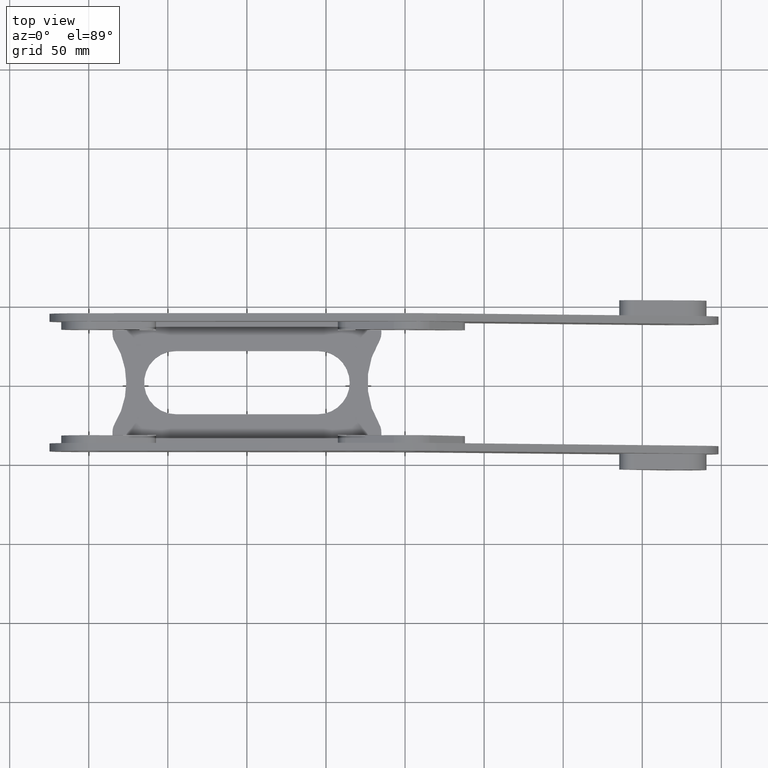
[diagram: clean part render]
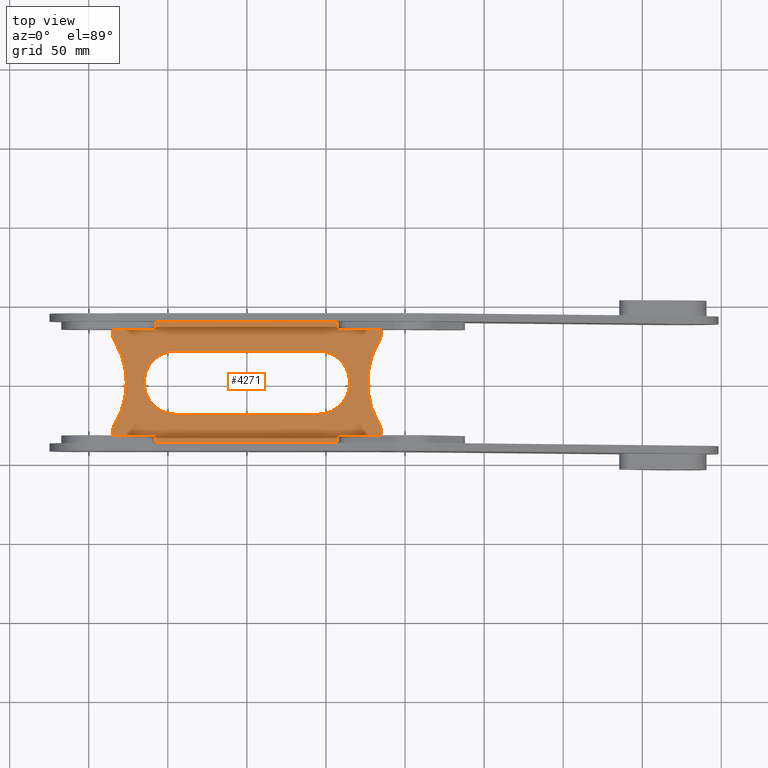
[diagram: same view with one face highlighted and labeled with its STEP entity id]
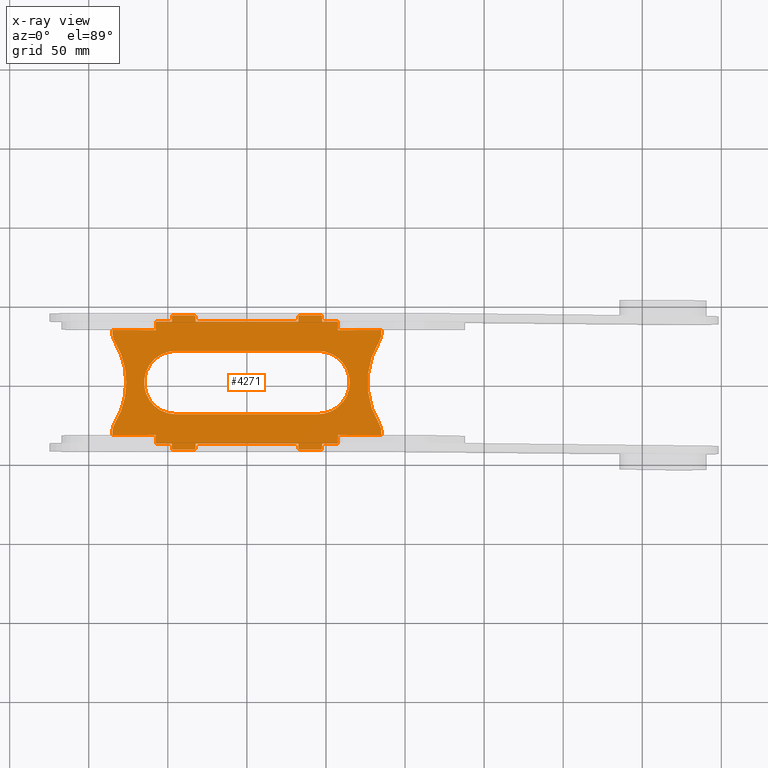
[diagram: x-ray of the same camera — body ghosted, the highlighted face saturated]
A machine part, top view. The second image highlights one B-rep face of the part: STEP entity #4271.
The next image is the same camera in x-ray: the body ghosted, the highlighted face saturated — about 0% of this face is hidden behind the body in this view.
In plain terms, the highlighted planar face has unit normal (0, 0, -1).
Its self-contained STEP definition (entity closure, byte-faithful):
#5 = VERTEX_POINT ( 'NONE', #1080 ) ;
#7 = DIRECTION ( 'NONE',  ( -0.000000000000000000, 0.000000000000000000, 1.000000000000000000 ) ) ;
#21 = DIRECTION ( 'NONE',  ( 0.000000000000000000, 0.000000000000000000, 1.000000000000000000 ) ) ;
#28 = AXIS2_PLACEMENT_3D ( 'NONE', #2318, #21, #3673 ) ;
#34 = AXIS2_PLACEMENT_3D ( 'NONE', #1774, #2490, #4162 ) ;
#42 = ORIENTED_EDGE ( 'NONE', *, *, #3307, .T. ) ;
#44 = CARTESIAN_POINT ( 'NONE',  ( -84.99999999999998579, 33.20000000000000284, 2.500000000000000000 ) ) ;
#59 = CARTESIAN_POINT ( 'NONE',  ( -33.49999999999999289, 41.49999999999999289, 2.500000000000000000 ) ) ;
#63 = VERTEX_POINT ( 'NONE', #2039 ) ;
#72 = ORIENTED_EDGE ( 'NONE', *, *, #2526, .T. ) ;
#74 = VERTEX_POINT ( 'NONE', #1721 ) ;
#93 = ORIENTED_EDGE ( 'NONE', *, *, #1607, .F. ) ;
#99 = ORIENTED_EDGE ( 'NONE', *, *, #796, .T. ) ;
#104 = EDGE_CURVE ( 'NONE', #3347, #315, #335, .T. ) ;
#124 = LINE ( 'NONE', #1479, #1944 ) ;
#185 = ORIENTED_EDGE ( 'NONE', *, *, #1568, .T. ) ;
#194 = CARTESIAN_POINT ( 'NONE',  ( -57.49999999999999289, -38.49999999999999289, 2.500000000000000000 ) ) ;
#196 = EDGE_CURVE ( 'NONE', #3283, #1138, #2503, .T. ) ;
#235 = AXIS2_PLACEMENT_3D ( 'NONE', #3378, #2379, #283 ) ;
#242 = CIRCLE ( 'NONE', #1230, 50.00000000000000000 ) ;
#244 = CARTESIAN_POINT ( 'NONE',  ( -76.28873938497034146, 0.000000000000000000, 2.500000000000000000 ) ) ;
#245 = VECTOR ( 'NONE', #1791, 1000.000000000000000 ) ;
#251 = DIRECTION ( 'NONE',  ( -1.000000000000000000, -1.318389841742374023E-14, 0.000000000000000000 ) ) ;
#258 = DIRECTION ( 'NONE',  ( 0.000000000000000000, 1.000000000000000000, 0.000000000000000000 ) ) ;
#277 = CARTESIAN_POINT ( 'NONE',  ( -85.00000000000000000, 38.50000000000000000, 2.500000000000000000 ) ) ;
#283 = DIRECTION ( 'NONE',  ( 1.000000000000000000, 0.000000000000000000, 0.000000000000000000 ) ) ;
#291 = VERTEX_POINT ( 'NONE', #918 ) ;
#300 = CIRCLE ( 'NONE', #664, 9.999999999999994671 ) ;
#301 = ORIENTED_EDGE ( 'NONE', *, *, #2062, .T. ) ;
#315 = VERTEX_POINT ( 'NONE', #1941 ) ;
#320 = VERTEX_POINT ( 'NONE', #2613 ) ;
#323 = CARTESIAN_POINT ( 'NONE',  ( 33.50000000000000711, 42.49999999999998579, 2.500000000000000000 ) ) ;
#335 = B_SPLINE_CURVE_WITH_KNOTS ( 'NONE', 1,
 ( #4155, #323 ),
 .UNSPECIFIED., .F., .F.,
 ( 2, 2 ),
 ( 0.6500000000000000222, 0.9749999999999999778 ),
 .UNSPECIFIED. ) ;
#345 = CARTESIAN_POINT ( 'NONE',  ( 85.00000000000001421, -38.49999999999997158, 2.500000000000000000 ) ) ;
#348 = CARTESIAN_POINT ( 'NONE',  ( 46.50000000000000711, -41.49999999999999289, 2.500000000000000000 ) ) ;
#349 = EDGE_CURVE ( 'NONE', #3208, #74, #951, .T. ) ;
#356 = EDGE_LOOP ( 'NONE', ( #1810, #4167, #1522, #1500, #1612, #2654, #2391, #2453, #1990, #1336, #2255, #3493, #3073, #514, #1694, #2760, #4176, #3484, #1915, #2859, #3039, #4136, #1472, #584, #2500, #93, #2528, #2817, #42, #4347, #301, #1587, #185, #2149, #3531, #2217, #3520, #1712, #72, #858, #1344, #99, #1020, #717, #3153 ) ) ;
#371 = VECTOR ( 'NONE', #551, 1000.000000000000000 ) ;
#383 = AXIS2_PLACEMENT_3D ( 'NONE', #3391, #703, #3993 ) ;
#412 = CARTESIAN_POINT ( 'NONE',  ( 46.50000000000000711, -42.49999999999998579, 2.500000000000000000 ) ) ;
#414 = AXIS2_PLACEMENT_3D ( 'NONE', #3450, #4118, #2387 ) ;
#423 = DIRECTION ( 'NONE',  ( 0.000000000000000000, -1.000000000000000000, 0.000000000000000000 ) ) ;
#431 = CARTESIAN_POINT ( 'NONE',  ( -85.00000000000000000, 38.50000000000000000, 2.500000000000000000 ) ) ;
#442 = VERTEX_POINT ( 'NONE', #881 ) ;
#461 = DIRECTION ( 'NONE',  ( 0.000000000000000000, 0.000000000000000000, 1.000000000000000000 ) ) ;
#462 = DIRECTION ( 'NONE',  ( -1.000000000000000000, -1.632680918566406547E-16, 0.000000000000000000 ) ) ;
#479 = CARTESIAN_POINT ( 'NONE',  ( 83.54812323082839498, 25.94686360168220318, 2.500000000000000000 ) ) ;
#483 = VECTOR ( 'NONE', #552, 1000.000000000000000 ) ;
#494 = AXIS2_PLACEMENT_3D ( 'NONE', #348, #4066, #3693 ) ;
#514 = ORIENTED_EDGE ( 'NONE', *, *, #2878, .T. ) ;
#537 = VERTEX_POINT ( 'NONE', #1545 ) ;
#551 = DIRECTION ( 'NONE',  ( -0.000000000000000000, 1.000000000000000000, -0.000000000000000000 ) ) ;
#552 = DIRECTION ( 'NONE',  ( 1.000000000000000000, 1.927470528863120281E-16, 0.000000000000000000 ) ) ;
#584 = ORIENTED_EDGE ( 'NONE', *, *, #3107, .T. ) ;
#592 = VECTOR ( 'NONE', #1657, 1000.000000000000000 ) ;
#600 = DIRECTION ( 'NONE',  ( 0.000000000000000000, -1.000000000000000000, 0.000000000000000000 ) ) ;
#613 = CARTESIAN_POINT ( 'NONE',  ( 57.49999999999999289, -38.50000000000002842, 2.500000000000000000 ) ) ;
#620 = EDGE_CURVE ( 'NONE', #1436, #2948, #1212, .T. ) ;
#634 = CARTESIAN_POINT ( 'NONE',  ( -46.49999999999999289, 41.49999999999999289, 2.500000000000000000 ) ) ;
#639 = EDGE_CURVE ( 'NONE', #2639, #3973, #3625, .T. ) ;
#641 = CARTESIAN_POINT ( 'NONE',  ( -83.54812323082839498, 25.94686360168220318, 2.500000000000000000 ) ) ;
#664 = AXIS2_PLACEMENT_3D ( 'NONE', #1674, #7, #4396 ) ;
#667 = DIRECTION ( 'NONE',  ( -1.000000000000000000, 0.000000000000000000, 0.000000000000000000 ) ) ;
#695 = VERTEX_POINT ( 'NONE', #1323 ) ;
#703 = DIRECTION ( 'NONE',  ( -0.000000000000000000, 0.000000000000000000, 1.000000000000000000 ) ) ;
#707 = CARTESIAN_POINT ( 'NONE',  ( -126.2887393849703415, 0.000000000000000000, 2.500000000000000000 ) ) ;
#710 = DIRECTION ( 'NONE',  ( 0.000000000000000000, 0.000000000000000000, -1.000000000000000000 ) ) ;
#717 = ORIENTED_EDGE ( 'NONE', *, *, #620, .T. ) ;
#733 = CARTESIAN_POINT ( 'NONE',  ( -33.49999999999999289, -41.49999999999999289, 2.500000000000000000 ) ) ;
#763 = LINE ( 'NONE', #2099, #798 ) ;
#769 = EDGE_CURVE ( 'NONE', #2660, #1736, #4314, .T. ) ;
#779 = CARTESIAN_POINT ( 'NONE',  ( 33.50000000000000711, -42.49999999999998579, 2.500000000000000000 ) ) ;
#796 = EDGE_CURVE ( 'NONE', #3755, #818, #3689, .T. ) ;
#797 = CARTESIAN_POINT ( 'NONE',  ( -32.49999999999998579, 38.50000000000000711, 2.500000000000000000 ) ) ;
#798 = VECTOR ( 'NONE', #423, 1000.000000000000000 ) ;
#812 = CARTESIAN_POINT ( 'NONE',  ( 85.00000000000000000, 38.50000000000002842, 2.500000000000000000 ) ) ;
#813 = CIRCLE ( 'NONE', #34, 9.999999999999994671 ) ;
#814 = VERTEX_POINT ( 'NONE', #641 ) ;
#818 = VERTEX_POINT ( 'NONE', #925 ) ;
#844 = VECTOR ( 'NONE', #2450, 1000.000000000000000 ) ;
#845 = CARTESIAN_POINT ( 'NONE',  ( 64.99999999999995737, 3.081487911019577365E-30, 2.500000000000000000 ) ) ;
#848 = AXIS2_PLACEMENT_3D ( 'NONE', #3741, #1064, #4091 ) ;
#858 = ORIENTED_EDGE ( 'NONE', *, *, #639, .F. ) ;
#881 = CARTESIAN_POINT ( 'NONE',  ( -46.49999999999999289, 42.49999999999998579, 2.500000000000000000 ) ) ;
#887 = LINE ( 'NONE', #1243, #371 ) ;
#918 = CARTESIAN_POINT ( 'NONE',  ( -32.49999999999999289, -41.49999999999999289, 2.500000000000000000 ) ) ;
#925 = CARTESIAN_POINT ( 'NONE',  ( 47.50000000000000711, -38.49999999999999289, 2.500000000000000000 ) ) ;
#930 = LINE ( 'NONE', #1534, #1372 ) ;
#942 = DIRECTION ( 'NONE',  ( -1.000000000000000000, 0.000000000000000000, 0.000000000000000000 ) ) ;
#951 = CIRCLE ( 'NONE', #4301, 9.999999999999994671 ) ;
#973 = LINE ( 'NONE', #3355, #4195 ) ;
#997 = PLANE ( 'NONE',  #2422 ) ;
#998 = EDGE_CURVE ( 'NONE', #818, #1436, #1224, .T. ) ;
#1020 = ORIENTED_EDGE ( 'NONE', *, *, #998, .T. ) ;
#1056 = CARTESIAN_POINT ( 'NONE',  ( 46.50000000000000711, -42.49999999999998579, 2.500000000000000000 ) ) ;
#1057 = CARTESIAN_POINT ( 'NONE',  ( 44.99999999999998579, -19.99999999999998224, 2.500000000000000000 ) ) ;
#1061 = DIRECTION ( 'NONE',  ( 1.000000000000000000, 0.000000000000000000, 0.000000000000000000 ) ) ;
#1064 = DIRECTION ( 'NONE',  ( 0.000000000000000000, 0.000000000000000000, 1.000000000000000000 ) ) ;
#1080 = CARTESIAN_POINT ( 'NONE',  ( -57.50000000000000711, -33.20000000000000284, 2.500000000000000000 ) ) ;
#1127 = DIRECTION ( 'NONE',  ( 0.000000000000000000, -1.000000000000000000, 0.000000000000000000 ) ) ;
#1138 = VERTEX_POINT ( 'NONE', #1984 ) ;
#1176 = CARTESIAN_POINT ( 'NONE',  ( 85.00000000000000000, 33.19999999999997442, 2.500000000000000000 ) ) ;
#1190 = DIRECTION ( 'NONE',  ( -1.000000000000000000, 0.000000000000000000, 0.000000000000000000 ) ) ;
#1198 = VECTOR ( 'NONE', #3941, 1000.000000000000000 ) ;
#1212 = LINE ( 'NONE', #613, #2880 ) ;
#1224 = LINE ( 'NONE', #1604, #2714 ) ;
#1227 = VECTOR ( 'NONE', #1061, 1000.000000000000000 ) ;
#1230 = AXIS2_PLACEMENT_3D ( 'NONE', #2886, #4244, #1190 ) ;
#1243 = CARTESIAN_POINT ( 'NONE',  ( -47.49999999999999289, -42.49999999999999289, 2.500000000000000000 ) ) ;
#1244 = DIRECTION ( 'NONE',  ( -1.000000000000000000, 0.000000000000000000, 0.000000000000000000 ) ) ;
#1253 = EDGE_CURVE ( 'NONE', #3994, #2416, #300, .T. ) ;
#1272 = VERTEX_POINT ( 'NONE', #3052 ) ;
#1284 = CARTESIAN_POINT ( 'NONE',  ( -44.99999999999997158, -19.99999999999998224, 2.500000000000000000 ) ) ;
#1299 = AXIS2_PLACEMENT_3D ( 'NONE', #2356, #3716, #667 ) ;
#1318 = VERTEX_POINT ( 'NONE', #2520 ) ;
#1323 = CARTESIAN_POINT ( 'NONE',  ( 32.50000000000000711, -41.49999999999999289, 2.500000000000000000 ) ) ;
#1324 = LINE ( 'NONE', #345, #3004 ) ;
#1336 = ORIENTED_EDGE ( 'NONE', *, *, #3822, .F. ) ;
#1344 = ORIENTED_EDGE ( 'NONE', *, *, #4299, .T. ) ;
#1346 = DIRECTION ( 'NONE',  ( 1.000000000000000000, 0.000000000000000000, 0.000000000000000000 ) ) ;
#1369 = CARTESIAN_POINT ( 'NONE',  ( 0.000000000000000000, 0.000000000000000000, 2.500000000000000000 ) ) ;
#1372 = VECTOR ( 'NONE', #2894, 1000.000000000000000 ) ;
#1375 = CARTESIAN_POINT ( 'NONE',  ( 47.50000000000000711, -41.49999999999999289, 2.500000000000000000 ) ) ;
#1379 = VERTEX_POINT ( 'NONE', #3835 ) ;
#1389 = DIRECTION ( 'NONE',  ( 1.000000000000000000, 0.000000000000000000, 0.000000000000000000 ) ) ;
#1416 = EDGE_CURVE ( 'NONE', #2256, #1756, #763, .T. ) ;
#1419 = DIRECTION ( 'NONE',  ( 0.000000000000000000, -1.000000000000000000, 0.000000000000000000 ) ) ;
#1425 = CARTESIAN_POINT ( 'NONE',  ( 44.99999999999997158, 3.081487911019577365E-30, 2.500000000000000000 ) ) ;
#1432 = EDGE_CURVE ( 'NONE', #2213, #4198, #3359, .T. ) ;
#1435 = LINE ( 'NONE', #3485, #1519 ) ;
#1436 = VERTEX_POINT ( 'NONE', #4189 ) ;
#1468 = VERTEX_POINT ( 'NONE', #244 ) ;
#1472 = ORIENTED_EDGE ( 'NONE', *, *, #3091, .T. ) ;
#1479 = CARTESIAN_POINT ( 'NONE',  ( 85.00000000000000000, 38.50000000000002842, 2.500000000000000000 ) ) ;
#1500 = ORIENTED_EDGE ( 'NONE', *, *, #1253, .T. ) ;
#1508 = LINE ( 'NONE', #3535, #4047 ) ;
#1516 = CIRCLE ( 'NONE', #1299, 1.000000000000000888 ) ;
#1519 = VECTOR ( 'NONE', #4200, 1000.000000000000000 ) ;
#1522 = ORIENTED_EDGE ( 'NONE', *, *, #3038, .T. ) ;
#1528 = EDGE_CURVE ( 'NONE', #2836, #3925, #887, .T. ) ;
#1534 = CARTESIAN_POINT ( 'NONE',  ( -57.50000000000000711, 38.50000000000000000, 2.500000000000000000 ) ) ;
#1545 = CARTESIAN_POINT ( 'NONE',  ( -32.49999999999999289, -38.49999999999999289, 2.500000000000000000 ) ) ;
#1568 = EDGE_CURVE ( 'NONE', #2836, #1736, #4214, .T. ) ;
#1587 = ORIENTED_EDGE ( 'NONE', *, *, #1528, .F. ) ;
#1604 = CARTESIAN_POINT ( 'NONE',  ( 85.00000000000001421, -38.49999999999997158, 2.500000000000000000 ) ) ;
#1607 = EDGE_CURVE ( 'NONE', #3208, #1468, #4355, .T. ) ;
#1611 = VERTEX_POINT ( 'NONE', #2319 ) ;
#1612 = ORIENTED_EDGE ( 'NONE', *, *, #1819, .T. ) ;
#1657 = DIRECTION ( 'NONE',  ( -1.802310104910968394E-16, 1.000000000000000000, -0.000000000000000000 ) ) ;
#1674 = CARTESIAN_POINT ( 'NONE',  ( 75.00000000000001421, 31.13623632201864666, 2.500000000000000000 ) ) ;
#1694 = ORIENTED_EDGE ( 'NONE', *, *, #3683, .F. ) ;
#1712 = ORIENTED_EDGE ( 'NONE', *, *, #2326, .F. ) ;
#1721 = CARTESIAN_POINT ( 'NONE',  ( -84.99999999999997158, -31.13623632201861113, 2.500000000000000000 ) ) ;
#1729 = VECTOR ( 'NONE', #2684, 1000.000000000000000 ) ;
#1732 = DIRECTION ( 'NONE',  ( 0.000000000000000000, 0.000000000000000000, 1.000000000000000000 ) ) ;
#1736 = VERTEX_POINT ( 'NONE', #3467 ) ;
#1747 = VERTEX_POINT ( 'NONE', #2756 ) ;
#1755 = EDGE_CURVE ( 'NONE', #2660, #291, #2933, .T. ) ;
#1756 = VERTEX_POINT ( 'NONE', #3810 ) ;
#1774 = CARTESIAN_POINT ( 'NONE',  ( 75.00000000000001421, -31.13623632201866798, 2.500000000000000000 ) ) ;
#1791 = DIRECTION ( 'NONE',  ( -1.000000000000000000, -1.632680918566406547E-16, 0.000000000000000000 ) ) ;
#1794 = VECTOR ( 'NONE', #2949, 1000.000000000000000 ) ;
#1800 = CARTESIAN_POINT ( 'NONE',  ( 85.00000000000000000, 38.50000000000002842, 2.500000000000000000 ) ) ;
#1801 = LINE ( 'NONE', #2514, #844 ) ;
#1803 = EDGE_CURVE ( 'NONE', #1898, #320, #3134, .T. ) ;
#1810 = ORIENTED_EDGE ( 'NONE', *, *, #3067, .T. ) ;
#1812 = VERTEX_POINT ( 'NONE', #797 ) ;
#1819 = EDGE_CURVE ( 'NONE', #2416, #1921, #2849, .T. ) ;
#1846 = ORIENTED_EDGE ( 'NONE', *, *, #2473, .F. ) ;
#1861 = LINE ( 'NONE', #3244, #4218 ) ;
#1898 = VERTEX_POINT ( 'NONE', #1926 ) ;
#1905 = EDGE_CURVE ( 'NONE', #5, #4083, #1861, .T. ) ;
#1907 = CIRCLE ( 'NONE', #2976, 1.000000000000000888 ) ;
#1915 = ORIENTED_EDGE ( 'NONE', *, *, #2765, .T. ) ;
#1921 = VERTEX_POINT ( 'NONE', #1176 ) ;
#1926 = CARTESIAN_POINT ( 'NONE',  ( 32.50000000000000711, 41.49999999999999289, 2.500000000000000000 ) ) ;
#1936 = VECTOR ( 'NONE', #3093, 1000.000000000000000 ) ;
#1940 = VECTOR ( 'NONE', #4252, 1000.000000000000000 ) ;
#1941 = CARTESIAN_POINT ( 'NONE',  ( 33.50000000000000711, 42.49999999999998579, 2.500000000000000000 ) ) ;
#1944 = VECTOR ( 'NONE', #2846, 1000.000000000000000 ) ;
#1955 = CARTESIAN_POINT ( 'NONE',  ( -85.00000000000000000, 33.20000000000000284, 2.500000000000000000 ) ) ;
#1964 = CARTESIAN_POINT ( 'NONE',  ( -84.99999999999998579, -33.20000000000000284, 2.500000000000000000 ) ) ;
#1969 = CARTESIAN_POINT ( 'NONE',  ( 33.50000000000000711, -42.49999999999998579, 2.500000000000000000 ) ) ;
#1984 = CARTESIAN_POINT ( 'NONE',  ( -57.50000000000000711, 38.50000000000000000, 2.500000000000000000 ) ) ;
#1990 = ORIENTED_EDGE ( 'NONE', *, *, #1416, .F. ) ;
#1994 = ORIENTED_EDGE ( 'NONE', *, *, #4228, .F. ) ;
#2013 = LINE ( 'NONE', #4086, #592 ) ;
#2020 = DIRECTION ( 'NONE',  ( -1.000000000000000000, 0.000000000000000000, -0.000000000000000000 ) ) ;
#2039 = CARTESIAN_POINT ( 'NONE',  ( 57.49999999999999289, 38.50000000000002132, 2.500000000000000000 ) ) ;
#2061 = EDGE_CURVE ( 'NONE', #3060, #4192, #2725, .T. ) ;
#2062 = EDGE_CURVE ( 'NONE', #4083, #3925, #1324, .T. ) ;
#2064 = DIRECTION ( 'NONE',  ( 0.000000000000000000, 0.000000000000000000, 1.000000000000000000 ) ) ;
#2096 = B_SPLINE_CURVE_WITH_KNOTS ( 'NONE', 1,
 ( #2329, #3014 ),
 .UNSPECIFIED., .F., .F.,
 ( 2, 2 ),
 ( 0.6500000000000000222, 0.9749999999999999778 ),
 .UNSPECIFIED. ) ;
#2099 = CARTESIAN_POINT ( 'NONE',  ( 47.50000000000000711, 42.49999999999999289, 2.500000000000000000 ) ) ;
#2102 = CARTESIAN_POINT ( 'NONE',  ( -33.49999999999999289, -42.49999999999998579, 2.500000000000000000 ) ) ;
#2111 = DIRECTION ( 'NONE',  ( -1.000000000000000000, 0.000000000000000000, 0.000000000000000000 ) ) ;
#2118 = DIRECTION ( 'NONE',  ( 1.000000000000000000, 0.000000000000000000, 0.000000000000000000 ) ) ;
#2149 = ORIENTED_EDGE ( 'NONE', *, *, #769, .F. ) ;
#2162 = CIRCLE ( 'NONE', #28, 1.000000000000000888 ) ;
#2164 = EDGE_CURVE ( 'NONE', #1898, #315, #1516, .T. ) ;
#2176 = EDGE_CURVE ( 'NONE', #2372, #4079, #3086, .T. ) ;
#2178 = LINE ( 'NONE', #431, #3157 ) ;
#2189 = EDGE_CURVE ( 'NONE', #1468, #814, #2801, .T. ) ;
#2202 = CIRCLE ( 'NONE', #848, 19.99999999999997513 ) ;
#2213 = VERTEX_POINT ( 'NONE', #845 ) ;
#2217 = ORIENTED_EDGE ( 'NONE', *, *, #3700, .T. ) ;
#2230 = CARTESIAN_POINT ( 'NONE',  ( 47.50000000000000711, 41.49999999999999289, 2.500000000000000000 ) ) ;
#2231 = DIRECTION ( 'NONE',  ( 0.000000000000000000, 0.000000000000000000, 1.000000000000000000 ) ) ;
#2241 = EDGE_CURVE ( 'NONE', #4079, #1138, #930, .T. ) ;
#2242 = CARTESIAN_POINT ( 'NONE',  ( 85.00000000000001421, -38.49999999999997158, 2.500000000000000000 ) ) ;
#2255 = ORIENTED_EDGE ( 'NONE', *, *, #104, .T. ) ;
#2256 = VERTEX_POINT ( 'NONE', #2230 ) ;
#2284 = CARTESIAN_POINT ( 'NONE',  ( 57.49999999999999289, -33.19999999999997442, 2.500000000000000000 ) ) ;
#2294 = AXIS2_PLACEMENT_3D ( 'NONE', #3917, #2231, #3585 ) ;
#2306 = CIRCLE ( 'NONE', #383, 9.999999999999994671 ) ;
#2318 = CARTESIAN_POINT ( 'NONE',  ( 33.50000000000000711, -41.49999999999999289, 2.500000000000000000 ) ) ;
#2319 = CARTESIAN_POINT ( 'NONE',  ( -85.00000000000000000, 31.13623632201864311, 2.500000000000000000 ) ) ;
#2326 = EDGE_CURVE ( 'NONE', #695, #1379, #3562, .T. ) ;
#2329 = CARTESIAN_POINT ( 'NONE',  ( -33.49999999999999289, 42.49999999999998579, 2.500000000000000000 ) ) ;
#2335 = CARTESIAN_POINT ( 'NONE',  ( -44.99999999999997158, -19.99999999999998224, 2.500000000000000000 ) ) ;
#2340 = CARTESIAN_POINT ( 'NONE',  ( -32.49999999999999289, 41.49999999999999289, 2.500000000000000000 ) ) ;
#2356 = CARTESIAN_POINT ( 'NONE',  ( 33.50000000000000711, 41.49999999999999289, 2.500000000000000000 ) ) ;
#2372 = VERTEX_POINT ( 'NONE', #1955 ) ;
#2374 = DIRECTION ( 'NONE',  ( -0.000000000000000000, 0.000000000000000000, -1.000000000000000000 ) ) ;
#2379 = DIRECTION ( 'NONE',  ( 0.000000000000000000, 0.000000000000000000, 1.000000000000000000 ) ) ;
#2387 = DIRECTION ( 'NONE',  ( -1.000000000000000000, 0.000000000000000000, 0.000000000000000000 ) ) ;
#2391 = ORIENTED_EDGE ( 'NONE', *, *, #3926, .F. ) ;
#2416 = VERTEX_POINT ( 'NONE', #3336 ) ;
#2422 = AXIS2_PLACEMENT_3D ( 'NONE', #1369, #710, #2020 ) ;
#2450 = DIRECTION ( 'NONE',  ( 0.000000000000000000, -1.000000000000000000, 0.000000000000000000 ) ) ;
#2453 = ORIENTED_EDGE ( 'NONE', *, *, #3975, .T. ) ;
#2465 = CARTESIAN_POINT ( 'NONE',  ( -47.49999999999999289, -41.49999999999999289, 2.500000000000000000 ) ) ;
#2473 = EDGE_CURVE ( 'NONE', #4198, #3060, #2690, .T. ) ;
#2490 = DIRECTION ( 'NONE',  ( -0.000000000000000000, 0.000000000000000000, 1.000000000000000000 ) ) ;
#2492 = CARTESIAN_POINT ( 'NONE',  ( -47.49999999999998579, -38.49999999999999289, 2.500000000000000000 ) ) ;
#2498 = DIRECTION ( 'NONE',  ( 0.000000000000000000, 0.000000000000000000, 1.000000000000000000 ) ) ;
#2500 = ORIENTED_EDGE ( 'NONE', *, *, #2189, .F. ) ;
#2503 = LINE ( 'NONE', #812, #245 ) ;
#2508 = AXIS2_PLACEMENT_3D ( 'NONE', #733, #461, #2111 ) ;
#2514 = CARTESIAN_POINT ( 'NONE',  ( 57.49999999999999289, 38.50000000000002842, 2.500000000000000000 ) ) ;
#2520 = CARTESIAN_POINT ( 'NONE',  ( -33.49999999999999289, 42.49999999999998579, 2.500000000000000000 ) ) ;
#2526 = EDGE_CURVE ( 'NONE', #695, #3973, #2162, .T. ) ;
#2528 = ORIENTED_EDGE ( 'NONE', *, *, #349, .T. ) ;
#2564 = VERTEX_POINT ( 'NONE', #4180 ) ;
#2583 = CARTESIAN_POINT ( 'NONE',  ( -32.49999999999999289, -42.49999999999999289, 2.500000000000000000 ) ) ;
#2613 = CARTESIAN_POINT ( 'NONE',  ( 32.50000000000000711, 38.49999999999999289, 2.500000000000000000 ) ) ;
#2639 = VERTEX_POINT ( 'NONE', #412 ) ;
#2646 = EDGE_CURVE ( 'NONE', #3406, #1272, #813, .T. ) ;
#2652 = VECTOR ( 'NONE', #1419, 1000.000000000000000 ) ;
#2654 = ORIENTED_EDGE ( 'NONE', *, *, #2755, .F. ) ;
#2660 = VERTEX_POINT ( 'NONE', #3110 ) ;
#2663 = CARTESIAN_POINT ( 'NONE',  ( -83.54812323082838077, -25.94686360168217831, 2.500000000000000000 ) ) ;
#2667 = CARTESIAN_POINT ( 'NONE',  ( -46.49999999999999289, -42.49999999999998579, 2.500000000000000000 ) ) ;
#2669 = CARTESIAN_POINT ( 'NONE',  ( 44.99999999999995737, 20.00000000000000000, 2.500000000000000000 ) ) ;
#2671 = CARTESIAN_POINT ( 'NONE',  ( -44.99999999999997158, 19.99999999999998224, 2.500000000000000000 ) ) ;
#2684 = DIRECTION ( 'NONE',  ( 3.604620209821936788E-16, -1.000000000000000000, 0.000000000000000000 ) ) ;
#2688 = FACE_BOUND ( 'NONE', #3478, .T. ) ;
#2690 = LINE ( 'NONE', #2671, #3508 ) ;
#2699 = VERTEX_POINT ( 'NONE', #3100 ) ;
#2714 = VECTOR ( 'NONE', #3660, 1000.000000000000000 ) ;
#2725 = CIRCLE ( 'NONE', #235, 19.99999999999998224 ) ;
#2755 = EDGE_CURVE ( 'NONE', #2564, #1921, #1435, .T. ) ;
#2756 = CARTESIAN_POINT ( 'NONE',  ( 85.00000000000001421, -33.19999999999997442, 2.500000000000000000 ) ) ;
#2760 = ORIENTED_EDGE ( 'NONE', *, *, #3553, .F. ) ;
#2765 = EDGE_CURVE ( 'NONE', #2860, #3283, #2778, .T. ) ;
#2778 = LINE ( 'NONE', #4135, #4007 ) ;
#2801 = CIRCLE ( 'NONE', #3221, 50.00000000000000000 ) ;
#2817 = ORIENTED_EDGE ( 'NONE', *, *, #2841, .T. ) ;
#2836 = VERTEX_POINT ( 'NONE', #2465 ) ;
#2841 = EDGE_CURVE ( 'NONE', #74, #2699, #2178, .T. ) ;
#2846 = DIRECTION ( 'NONE',  ( -1.000000000000000000, -1.632680918566406547E-16, 0.000000000000000000 ) ) ;
#2849 = LINE ( 'NONE', #1800, #1936 ) ;
#2859 = ORIENTED_EDGE ( 'NONE', *, *, #196, .T. ) ;
#2860 = VERTEX_POINT ( 'NONE', #3155 ) ;
#2878 = EDGE_CURVE ( 'NONE', #320, #1812, #124, .T. ) ;
#2880 = VECTOR ( 'NONE', #258, 1000.000000000000000 ) ;
#2886 = CARTESIAN_POINT ( 'NONE',  ( 126.2887393849703415, 0.000000000000000000, 2.500000000000000000 ) ) ;
#2894 = DIRECTION ( 'NONE',  ( -0.000000000000000000, 1.000000000000000000, -0.000000000000000000 ) ) ;
#2933 = CIRCLE ( 'NONE', #2508, 1.000000000000000888 ) ;
#2947 = DIRECTION ( 'NONE',  ( 1.000000000000000000, 1.632680918566406793E-16, -0.000000000000000000 ) ) ;
#2948 = VERTEX_POINT ( 'NONE', #2284 ) ;
#2949 = DIRECTION ( 'NONE',  ( -0.000000000000000000, 1.000000000000000000, -0.000000000000000000 ) ) ;
#2950 = DIRECTION ( 'NONE',  ( 0.000000000000000000, -1.000000000000000000, 0.000000000000000000 ) ) ;
#2956 = LINE ( 'NONE', #1284, #483 ) ;
#2972 = VECTOR ( 'NONE', #600, 1000.000000000000000 ) ;
#2976 = AXIS2_PLACEMENT_3D ( 'NONE', #59, #4366, #1244 ) ;
#2982 = EDGE_CURVE ( 'NONE', #537, #1379, #4269, .T. ) ;
#2987 = DIRECTION ( 'NONE',  ( -0.000000000000000000, 0.000000000000000000, 1.000000000000000000 ) ) ;
#3004 = VECTOR ( 'NONE', #3061, 1000.000000000000000 ) ;
#3014 = CARTESIAN_POINT ( 'NONE',  ( -46.49999999999999289, 42.49999999999998579, 2.500000000000000000 ) ) ;
#3038 = EDGE_CURVE ( 'NONE', #1272, #3994, #242, .T. ) ;
#3039 = ORIENTED_EDGE ( 'NONE', *, *, #2241, .F. ) ;
#3052 = CARTESIAN_POINT ( 'NONE',  ( 83.54812323082840919, -25.94686360168222095, 2.500000000000000000 ) ) ;
#3060 = VERTEX_POINT ( 'NONE', #4379 ) ;
#3061 = DIRECTION ( 'NONE',  ( 1.000000000000000000, 1.632680918566406793E-16, -0.000000000000000000 ) ) ;
#3067 = EDGE_CURVE ( 'NONE', #1747, #3406, #2013, .T. ) ;
#3073 = ORIENTED_EDGE ( 'NONE', *, *, #1803, .T. ) ;
#3086 = LINE ( 'NONE', #44, #1227 ) ;
#3091 = EDGE_CURVE ( 'NONE', #2372, #1611, #3757, .T. ) ;
#3093 = DIRECTION ( 'NONE',  ( -1.802310104910968394E-16, 1.000000000000000000, -0.000000000000000000 ) ) ;
#3100 = CARTESIAN_POINT ( 'NONE',  ( -84.99999999999998579, -33.20000000000000284, 2.500000000000000000 ) ) ;
#3103 = CARTESIAN_POINT ( 'NONE',  ( 85.00000000000001421, -31.13623632201866798, 2.500000000000000000 ) ) ;
#3107 = EDGE_CURVE ( 'NONE', #1611, #814, #2306, .T. ) ;
#3110 = CARTESIAN_POINT ( 'NONE',  ( -33.49999999999999289, -42.49999999999998579, 2.500000000000000000 ) ) ;
#3134 = LINE ( 'NONE', #3177, #2652 ) ;
#3153 = ORIENTED_EDGE ( 'NONE', *, *, #4293, .T. ) ;
#3155 = CARTESIAN_POINT ( 'NONE',  ( -47.49999999999999289, 41.49999999999999289, 2.500000000000000000 ) ) ;
#3157 = VECTOR ( 'NONE', #4177, 1000.000000000000000 ) ;
#3172 = ORIENTED_EDGE ( 'NONE', *, *, #3635, .F. ) ;
#3177 = CARTESIAN_POINT ( 'NONE',  ( 32.50000000000000711, 42.49999999999999289, 2.500000000000000000 ) ) ;
#3208 = VERTEX_POINT ( 'NONE', #2663 ) ;
#3221 = AXIS2_PLACEMENT_3D ( 'NONE', #707, #2064, #1389 ) ;
#3243 = EDGE_CURVE ( 'NONE', #1318, #442, #2096, .T. ) ;
#3244 = CARTESIAN_POINT ( 'NONE',  ( -57.50000000000000711, -38.50000000000000000, 2.500000000000000000 ) ) ;
#3245 = CARTESIAN_POINT ( 'NONE',  ( -57.50000000000000711, 33.20000000000000284, 2.500000000000000000 ) ) ;
#3249 = CARTESIAN_POINT ( 'NONE',  ( -32.49999999999999289, 42.49999999999999289, 2.500000000000000000 ) ) ;
#3261 = ORIENTED_EDGE ( 'NONE', *, *, #2061, .F. ) ;
#3283 = VERTEX_POINT ( 'NONE', #3992 ) ;
#3284 = AXIS2_PLACEMENT_3D ( 'NONE', #1425, #2498, #2118 ) ;
#3306 = CARTESIAN_POINT ( 'NONE',  ( 47.50000000000000711, -42.49999999999999289, 2.500000000000000000 ) ) ;
#3307 = EDGE_CURVE ( 'NONE', #2699, #5, #3685, .T. ) ;
#3314 = EDGE_CURVE ( 'NONE', #2860, #442, #4147, .T. ) ;
#3322 = CARTESIAN_POINT ( 'NONE',  ( -74.99999999999998579, -31.13623632201861113, 2.500000000000000000 ) ) ;
#3336 = CARTESIAN_POINT ( 'NONE',  ( 85.00000000000000000, 31.13623632201865021, 2.500000000000000000 ) ) ;
#3347 = VERTEX_POINT ( 'NONE', #4059 ) ;
#3355 = CARTESIAN_POINT ( 'NONE',  ( 85.00000000000000000, -33.19999999999997442, 2.500000000000000000 ) ) ;
#3359 = CIRCLE ( 'NONE', #3284, 19.99999999999997513 ) ;
#3371 = VECTOR ( 'NONE', #2947, 1000.000000000000000 ) ;
#3378 = CARTESIAN_POINT ( 'NONE',  ( -44.99999999999997158, -1.653273178848925447E-14, 2.500000000000000000 ) ) ;
#3391 = CARTESIAN_POINT ( 'NONE',  ( -75.00000000000001421, 31.13623632201864666, 2.500000000000000000 ) ) ;
#3406 = VERTEX_POINT ( 'NONE', #3103 ) ;
#3431 = AXIS2_PLACEMENT_3D ( 'NONE', #4343, #1732, #4365 ) ;
#3450 = CARTESIAN_POINT ( 'NONE',  ( 46.50000000000000711, 41.49999999999999289, 2.500000000000000000 ) ) ;
#3467 = CARTESIAN_POINT ( 'NONE',  ( -46.49999999999999289, -42.49999999999998579, 2.500000000000000000 ) ) ;
#3478 = EDGE_LOOP ( 'NONE', ( #3172, #3261, #1846, #4052, #1994 ) ) ;
#3484 = ORIENTED_EDGE ( 'NONE', *, *, #3314, .F. ) ;
#3485 = CARTESIAN_POINT ( 'NONE',  ( 85.00000000000000000, 33.19999999999997442, 2.500000000000000000 ) ) ;
#3493 = ORIENTED_EDGE ( 'NONE', *, *, #2164, .F. ) ;
#3508 = VECTOR ( 'NONE', #4048, 1000.000000000000000 ) ;
#3520 = ORIENTED_EDGE ( 'NONE', *, *, #2982, .T. ) ;
#3531 = ORIENTED_EDGE ( 'NONE', *, *, #1755, .T. ) ;
#3535 = CARTESIAN_POINT ( 'NONE',  ( 85.00000000000000000, 38.50000000000002842, 2.500000000000000000 ) ) ;
#3543 = VERTEX_POINT ( 'NONE', #1057 ) ;
#3553 = EDGE_CURVE ( 'NONE', #1318, #3834, #1907, .T. ) ;
#3562 = LINE ( 'NONE', #3627, #1940 ) ;
#3574 = VECTOR ( 'NONE', #4378, 1000.000000000000000 ) ;
#3585 = DIRECTION ( 'NONE',  ( -1.000000000000000000, 0.000000000000000000, 0.000000000000000000 ) ) ;
#3587 = LINE ( 'NONE', #3249, #2972 ) ;
#3617 = CIRCLE ( 'NONE', #414, 1.000000000000000888 ) ;
#3625 = B_SPLINE_CURVE_WITH_KNOTS ( 'NONE', 1,
 ( #1056, #1969 ),
 .UNSPECIFIED., .F., .F.,
 ( 2, 2 ),
 ( 0.6500000000000000222, 0.9749999999999999778 ),
 .UNSPECIFIED. ) ;
#3627 = CARTESIAN_POINT ( 'NONE',  ( 32.50000000000000711, -42.49999999999999289, 2.500000000000000000 ) ) ;
#3635 = EDGE_CURVE ( 'NONE', #4192, #3543, #2956, .T. ) ;
#3660 = DIRECTION ( 'NONE',  ( 1.000000000000000000, 1.632680918566406793E-16, -0.000000000000000000 ) ) ;
#3673 = DIRECTION ( 'NONE',  ( -1.000000000000000000, 0.000000000000000000, 0.000000000000000000 ) ) ;
#3683 = EDGE_CURVE ( 'NONE', #3834, #1812, #3587, .T. ) ;
#3685 = LINE ( 'NONE', #1964, #3574 ) ;
#3689 = LINE ( 'NONE', #3306, #1794 ) ;
#3693 = DIRECTION ( 'NONE',  ( -1.000000000000000000, 0.000000000000000000, 0.000000000000000000 ) ) ;
#3700 = EDGE_CURVE ( 'NONE', #291, #537, #4278, .T. ) ;
#3716 = DIRECTION ( 'NONE',  ( -0.000000000000000000, 0.000000000000000000, -1.000000000000000000 ) ) ;
#3722 = AXIS2_PLACEMENT_3D ( 'NONE', #634, #2374, #942 ) ;
#3741 = CARTESIAN_POINT ( 'NONE',  ( 44.99999999999997158, 3.081487911019577365E-30, 2.500000000000000000 ) ) ;
#3755 = VERTEX_POINT ( 'NONE', #1375 ) ;
#3757 = LINE ( 'NONE', #277, #1729 ) ;
#3810 = CARTESIAN_POINT ( 'NONE',  ( 47.50000000000000711, 38.50000000000002132, 2.500000000000000000 ) ) ;
#3822 = EDGE_CURVE ( 'NONE', #3347, #2256, #3617, .T. ) ;
#3834 = VERTEX_POINT ( 'NONE', #2340 ) ;
#3835 = CARTESIAN_POINT ( 'NONE',  ( 32.50000000000000711, -38.49999999999997868, 2.500000000000000000 ) ) ;
#3841 = CIRCLE ( 'NONE', #494, 1.000000000000000888 ) ;
#3917 = CARTESIAN_POINT ( 'NONE',  ( -46.49999999999999289, -41.49999999999999289, 2.500000000000000000 ) ) ;
#3925 = VERTEX_POINT ( 'NONE', #2492 ) ;
#3926 = EDGE_CURVE ( 'NONE', #63, #2564, #1801, .T. ) ;
#3941 = DIRECTION ( 'NONE',  ( -0.000000000000000000, 1.000000000000000000, -0.000000000000000000 ) ) ;
#3973 = VERTEX_POINT ( 'NONE', #779 ) ;
#3975 = EDGE_CURVE ( 'NONE', #63, #1756, #1508, .T. ) ;
#3992 = CARTESIAN_POINT ( 'NONE',  ( -47.49999999999999289, 38.49999999999999289, 2.500000000000000000 ) ) ;
#3993 = DIRECTION ( 'NONE',  ( -1.000000000000000000, 0.000000000000000000, 0.000000000000000000 ) ) ;
#3994 = VERTEX_POINT ( 'NONE', #479 ) ;
#4007 = VECTOR ( 'NONE', #1127, 1000.000000000000000 ) ;
#4045 = FACE_OUTER_BOUND ( 'NONE', #356, .T. ) ;
#4047 = VECTOR ( 'NONE', #462, 1000.000000000000000 ) ;
#4048 = DIRECTION ( 'NONE',  ( -1.000000000000000000, -1.927470528863120528E-16, -0.000000000000000000 ) ) ;
#4052 = ORIENTED_EDGE ( 'NONE', *, *, #1432, .F. ) ;
#4059 = CARTESIAN_POINT ( 'NONE',  ( 46.50000000000000711, 42.49999999999998579, 2.500000000000000000 ) ) ;
#4066 = DIRECTION ( 'NONE',  ( 0.000000000000000000, 0.000000000000000000, 1.000000000000000000 ) ) ;
#4079 = VERTEX_POINT ( 'NONE', #3245 ) ;
#4083 = VERTEX_POINT ( 'NONE', #194 ) ;
#4086 = CARTESIAN_POINT ( 'NONE',  ( 85.00000000000000000, 38.50000000000002842, 2.500000000000000000 ) ) ;
#4091 = DIRECTION ( 'NONE',  ( 1.000000000000000000, 0.000000000000000000, 0.000000000000000000 ) ) ;
#4118 = DIRECTION ( 'NONE',  ( -0.000000000000000000, 0.000000000000000000, -1.000000000000000000 ) ) ;
#4135 = CARTESIAN_POINT ( 'NONE',  ( -47.49999999999999289, 42.49999999999999289, 2.500000000000000000 ) ) ;
#4136 = ORIENTED_EDGE ( 'NONE', *, *, #2176, .F. ) ;
#4147 = CIRCLE ( 'NONE', #3722, 1.000000000000000888 ) ;
#4155 = CARTESIAN_POINT ( 'NONE',  ( 46.50000000000000711, 42.49999999999998579, 2.500000000000000000 ) ) ;
#4162 = DIRECTION ( 'NONE',  ( -1.000000000000000000, 0.000000000000000000, 0.000000000000000000 ) ) ;
#4167 = ORIENTED_EDGE ( 'NONE', *, *, #2646, .T. ) ;
#4176 = ORIENTED_EDGE ( 'NONE', *, *, #3243, .T. ) ;
#4177 = DIRECTION ( 'NONE',  ( 3.604620209821936788E-16, -1.000000000000000000, 0.000000000000000000 ) ) ;
#4180 = CARTESIAN_POINT ( 'NONE',  ( 57.49999999999999289, 33.19999999999997442, 2.500000000000000000 ) ) ;
#4189 = CARTESIAN_POINT ( 'NONE',  ( 57.49999999999999289, -38.50000000000002842, 2.500000000000000000 ) ) ;
#4192 = VERTEX_POINT ( 'NONE', #2335 ) ;
#4195 = VECTOR ( 'NONE', #1346, 1000.000000000000000 ) ;
#4198 = VERTEX_POINT ( 'NONE', #2669 ) ;
#4200 = DIRECTION ( 'NONE',  ( 1.000000000000000000, -0.000000000000000000, -0.000000000000000000 ) ) ;
#4214 = CIRCLE ( 'NONE', #2294, 1.000000000000000888 ) ;
#4218 = VECTOR ( 'NONE', #2950, 1000.000000000000000 ) ;
#4228 = EDGE_CURVE ( 'NONE', #3543, #2213, #2202, .T. ) ;
#4244 = DIRECTION ( 'NONE',  ( -0.000000000000000000, -0.000000000000000000, -1.000000000000000000 ) ) ;
#4252 = DIRECTION ( 'NONE',  ( -0.000000000000000000, 1.000000000000000000, -0.000000000000000000 ) ) ;
#4269 = LINE ( 'NONE', #2242, #3371 ) ;
#4271 = ADVANCED_FACE ( 'NONE', ( #2688, #4045 ), #997, .F. ) ;
#4278 = LINE ( 'NONE', #2583, #1198 ) ;
#4293 = EDGE_CURVE ( 'NONE', #2948, #1747, #973, .T. ) ;
#4299 = EDGE_CURVE ( 'NONE', #2639, #3755, #3841, .T. ) ;
#4301 = AXIS2_PLACEMENT_3D ( 'NONE', #3322, #2987, #251 ) ;
#4314 = B_SPLINE_CURVE_WITH_KNOTS ( 'NONE', 1,
 ( #2102, #2667 ),
 .UNSPECIFIED., .F., .F.,
 ( 2, 2 ),
 ( 0.6500000000000000222, 0.9749999999999999778 ),
 .UNSPECIFIED. ) ;
#4343 = CARTESIAN_POINT ( 'NONE',  ( -126.2887393849703415, 0.000000000000000000, 2.500000000000000000 ) ) ;
#4347 = ORIENTED_EDGE ( 'NONE', *, *, #1905, .T. ) ;
#4355 = CIRCLE ( 'NONE', #3431, 50.00000000000000000 ) ;
#4365 = DIRECTION ( 'NONE',  ( 1.000000000000000000, 0.000000000000000000, 0.000000000000000000 ) ) ;
#4366 = DIRECTION ( 'NONE',  ( -0.000000000000000000, 0.000000000000000000, -1.000000000000000000 ) ) ;
#4378 = DIRECTION ( 'NONE',  ( 1.000000000000000000, 0.000000000000000000, 0.000000000000000000 ) ) ;
#4379 = CARTESIAN_POINT ( 'NONE',  ( -44.99999999999997158, 19.99999999999998224, 2.500000000000000000 ) ) ;
#4396 = DIRECTION ( 'NONE',  ( -1.000000000000000000, 0.000000000000000000, 0.000000000000000000 ) ) ;